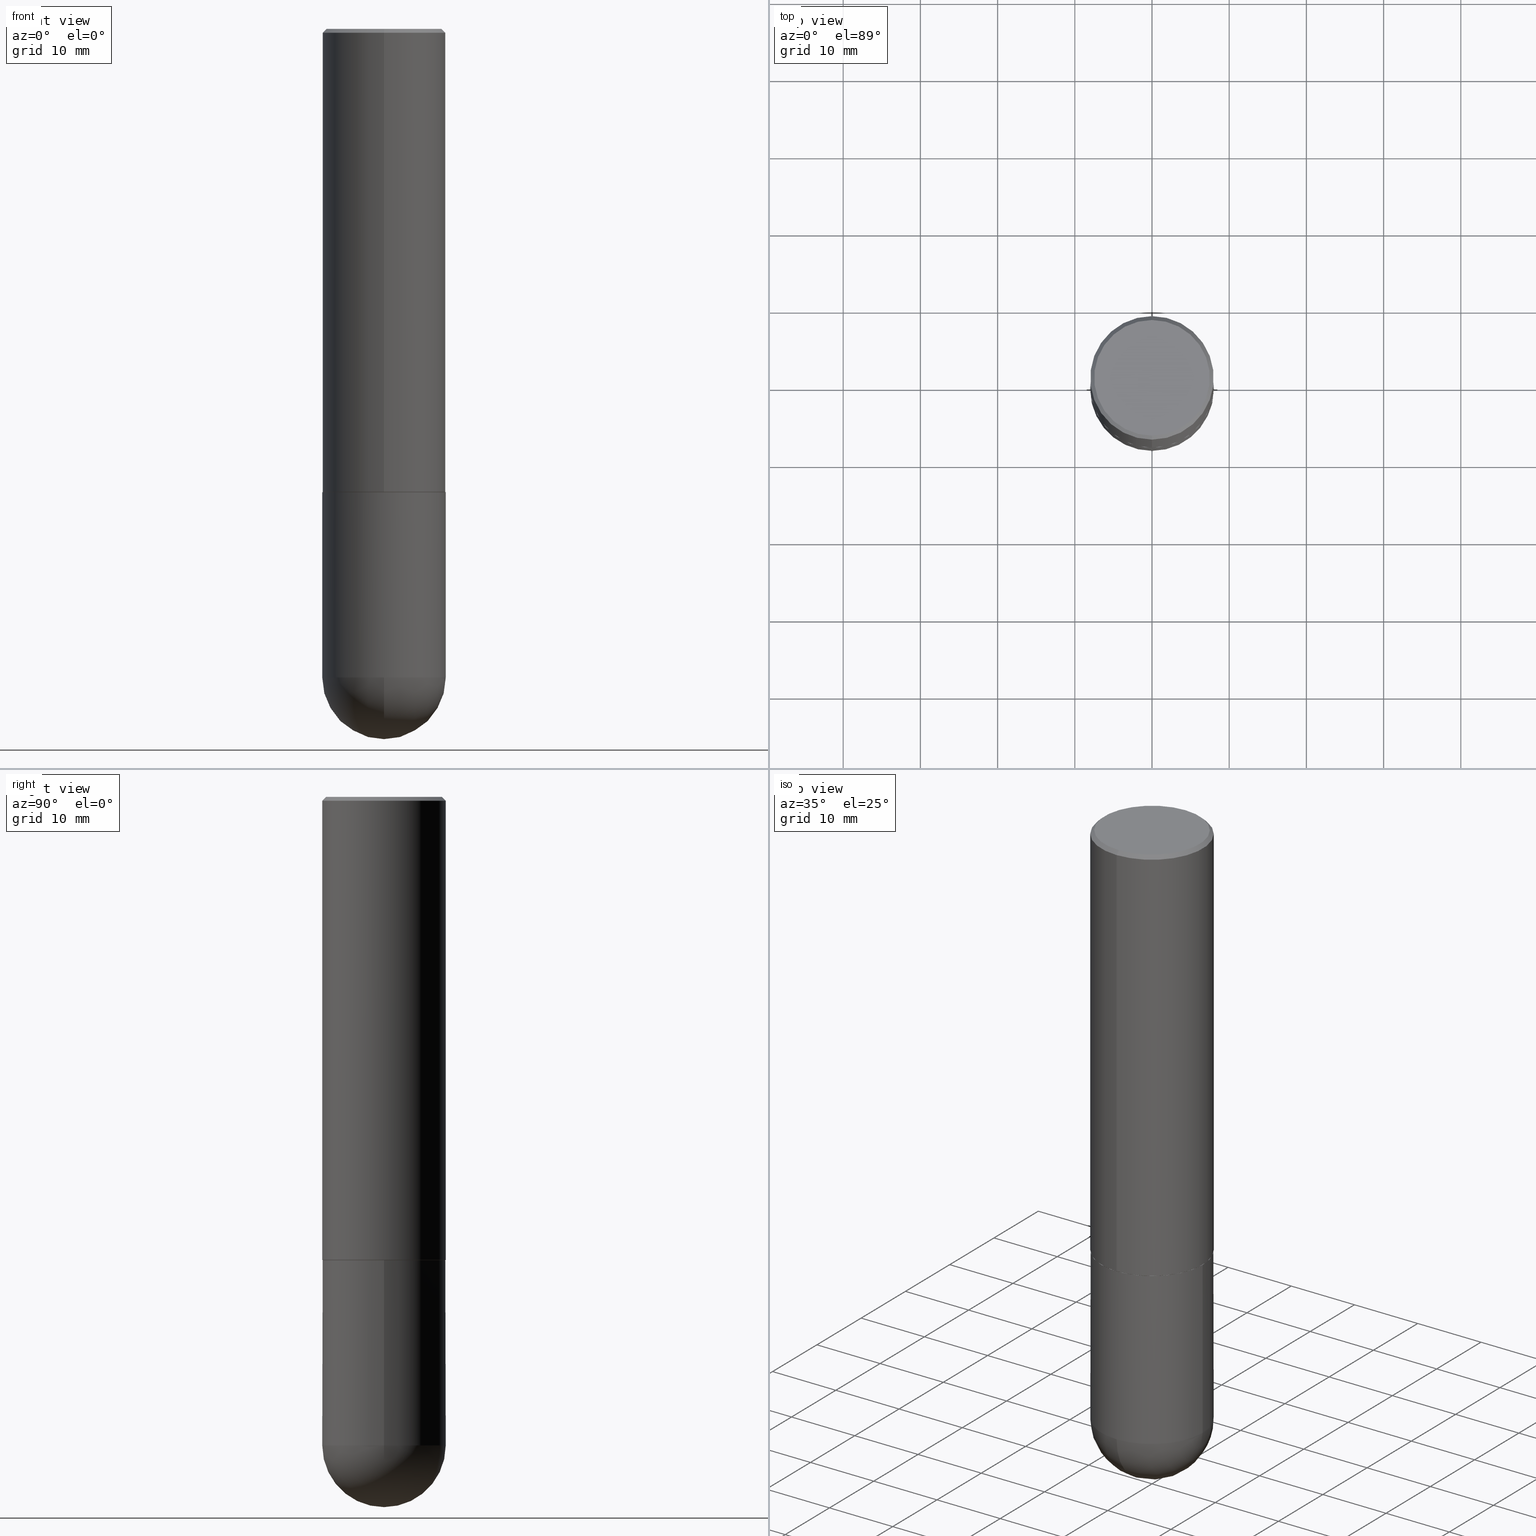
[diagram: canonical four-view strip — front | top / right | iso, engineering-drawing reading convention]
A machine part, canonical four-view strip (front | top / right | iso — engineering-drawing reading convention). The complete STEP part file that produces these views, byte-faithful:
ISO-10303-21;
HEADER;
FILE_DESCRIPTION (( 'STEP AP203' ),
    '1' );
FILE_NAME ('46519.STEP',
    '2024-04-10T11:50:35',
    ( '' ),
    ( '' ),
    'SwSTEP 2.0',
    'SolidWorks 2023',
    '' );
FILE_SCHEMA (( 'CONFIG_CONTROL_DESIGN' ));
ENDSEC;

DATA;
#1 = ORIENTED_EDGE ( 'NONE', *, *, #333, .T. ) ;
#2 = ORIENTED_EDGE ( 'NONE', *, *, #191, .F. ) ;
#3 = AXIS2_PLACEMENT_3D ( 'NONE', #58, #258, #122 ) ;
#4 = DIRECTION ( 'NONE',  ( 1.000000000000000000, -6.982962677686269866E-15, 0.000000000000000000 ) ) ;
#5 = EDGE_CURVE ( 'NONE', #285, #362, #358, .T. ) ;
#6 = VERTEX_POINT ( 'NONE', #83 ) ;
#7 = EDGE_CURVE ( 'NONE', #214, #158, #398, .T. ) ;
#8 = CARTESIAN_POINT ( 'NONE',  ( -2.199284095337290265E-15, -0.3149500000000001743, 1.099513928764781355E-15 ) ) ;
#9 = DIRECTION ( 'NONE',  ( 1.000000000000000000, -6.982962677686266711E-15, 4.876176775795936353E-29 ) ) ;
#10 = CIRCLE ( 'NONE', #226, 0.3149500000000000077 ) ;
#11 = EDGE_CURVE ( 'NONE', #362, #318, #378, .T. ) ;
#12 = APPROVAL_DATE_TIME ( #351, #123 ) ;
#13 = CC_DESIGN_DATE_AND_TIME_ASSIGNMENT ( #350, #19, ( #194 ) ) ;
#14 = VERTEX_POINT ( 'NONE', #22 ) ;
#15 = EDGE_LOOP ( 'NONE', ( #127, #368, #294, #228 ) ) ;
#16 = CALENDAR_DATE ( 2024, 10, 4 ) ;
#17 = AXIS2_PLACEMENT_3D ( 'NONE', #180, #18, #208 ) ;
#18 = DIRECTION ( 'NONE',  ( -1.000000000000000000, 7.105427357601001070E-15, -4.926315508542082329E-29 ) ) ;
#19 = DATE_TIME_ROLE ( 'creation_date' ) ;
#20 = PRODUCT_RELATED_PRODUCT_CATEGORY ( 'detail', '', ( #411 ) ) ;
#21 = DIRECTION ( 'NONE',  ( -2.445752866996063776E-29, 3.491074547594160525E-15, 1.000000000000000000 ) ) ;
#22 = CARTESIAN_POINT ( 'NONE',  ( -2.160713844398143363E-15, -0.3149500000000000632, -0.01999999999999896999 ) ) ;
#23 = CARTESIAN_POINT ( 'NONE',  ( 5.776686413970529753E-29, -8.247577218615278049E-15, -2.362199999999999633 ) ) ;
#24 = CONICAL_SURFACE ( 'NONE', #408, 0.3149500000000000077, 0.7853981633974471688 ) ;
#25 = DIRECTION ( 'NONE',  ( -6.982962677686266711E-15, -1.000000000000000000, 3.480615376543096919E-15 ) ) ;
#26 = AXIS2_PLACEMENT_3D ( 'NONE', #385, #144, #110 ) ;
#27 = EDGE_LOOP ( 'NONE', ( #128, #1, #393, #97, #156 ) ) ;
#28 = ORIENTED_EDGE ( 'NONE', *, *, #104, .F. ) ;
#29 = VERTEX_POINT ( 'NONE', #113 ) ;
#30 = ADVANCED_FACE ( 'NONE', ( #115 ), #253, .T. ) ;
#31 = ADVANCED_FACE ( 'NONE', ( #175 ), #305, .F. ) ;
#32 = CONICAL_SURFACE ( 'NONE', #273, 0.3149500000000000077, 0.7853981633974471688 ) ;
#33 = ORIENTED_EDGE ( 'NONE', *, *, #223, .T. ) ;
#34 = DIRECTION ( 'NONE',  ( 1.000000000000000000, -6.982962677686269866E-15, 0.000000000000000000 ) ) ;
#35 = ORIENTED_EDGE ( 'NONE', *, *, #206, .F. ) ;
#36 = CC_DESIGN_SECURITY_CLASSIFICATION ( #199, ( #169 ) ) ;
#37 = CARTESIAN_POINT ( 'NONE',  ( 2.129454468560427362E-15, 0.2949500000000001010, -1.127988208164095593E-15 ) ) ;
#38 = CONICAL_SURFACE ( 'NONE', #26, 0.3139500000000000068, 0.7853981633974141952 ) ;
#39 = LOCAL_TIME ( 7, 50, 35.00000000000000000, #327 ) ;
#40 = DIRECTION ( 'NONE',  ( -2.445752866996063776E-29, 3.491074547594160525E-15, 1.000000000000000000 ) ) ;
#41 = APPROVAL_STATUS ( 'not_yet_approved' ) ;
#42 = PERSON_AND_ORGANIZATION ( #75, #207 ) ;
#43 = CARTESIAN_POINT ( 'NONE',  ( 0.3149500000000000077, -2.199284095337289871E-15, 1.535751875536930130E-29 ) ) ;
#44 = CIRCLE ( 'NONE', #86, 0.3149500000000000077 ) ;
#45 = CARTESIAN_POINT ( 'NONE',  ( 0.3149500000000000077, -1.044686131395256792E-14, -2.362199999999999633 ) ) ;
#46 = CARTESIAN_POINT ( 'NONE',  ( -0.3149500000000000077, 2.237854346276435590E-15, -1.549218606675782676E-29 ) ) ;
#47 = CC_DESIGN_PERSON_AND_ORGANIZATION_ASSIGNMENT ( #300, #74, ( #194 ) ) ;
#48 = CARTESIAN_POINT ( 'NONE',  ( 4.891505733992145558E-31, -6.982149095188345750E-17, -0.02000000000000007327 ) ) ;
#49 = DIRECTION ( 'NONE',  ( -2.445468806185136877E-29, 3.491481338843145188E-15, 1.000000000000000000 ) ) ;
#50 = DIRECTION ( 'NONE',  ( -2.445752866996063776E-29, 3.491074547594160525E-15, 1.000000000000000000 ) ) ;
#51 = CYLINDRICAL_SURFACE ( 'NONE', #95, 0.3149500000000000077 ) ;
#52 = CIRCLE ( 'NONE', #298, 0.3149500000000000077 ) ;
#53 = CC_DESIGN_APPROVAL ( #123, ( #194 ) ) ;
#54 = PLANE ( 'NONE',  #249 ) ;
#55 = CARTESIAN_POINT ( 'NONE',  ( 8.539834969227531055E-29, -1.310104265196035002E-14, -3.621999999999999886 ) ) ;
#56 = VECTOR ( 'NONE', #397, 39.37007874015748143 ) ;
#57 = DIRECTION ( 'NONE',  ( -1.000000000000000000, 6.982962677686265133E-15, -4.883557194083112901E-29 ) ) ;
#58 = CARTESIAN_POINT ( 'NONE',  ( 5.777357422418102212E-29, -8.246616296326926125E-15, -2.362200000000000077 ) ) ;
#59 = EDGE_LOOP ( 'NONE', ( #166, #231, #372, #251 ) ) ;
#60 = AXIS2_PLACEMENT_3D ( 'NONE', #246, #354, #79 ) ;
#61 = LINE ( 'NONE', #164, #288 ) ;
#62 = SHAPE_DEFINITION_REPRESENTATION ( #338, #133 ) ;
#63 = ORIENTED_EDGE ( 'NONE', *, *, #277, .F. ) ;
#64 = APPROVAL_ROLE ( '' ) ;
#65 = CC_DESIGN_DATE_AND_TIME_ASSIGNMENT ( #386, #394, ( #199 ) ) ;
#66 = CARTESIAN_POINT ( 'NONE',  ( 8.087287615494557476E-29, -1.154650336162122627E-14, -3.307050000000000267 ) ) ;
#67 = FACE_OUTER_BOUND ( 'NONE', #348, .T. ) ;
#68 = ORIENTED_EDGE ( 'NONE', *, *, #81, .T. ) ;
#69 = VECTOR ( 'NONE', #196, 39.37007874015748143 ) ;
#70 = APPROVAL_ROLE ( '' ) ;
#71 = EDGE_CURVE ( 'NONE', #120, #167, #406, .T. ) ;
#72 = DIRECTION ( 'NONE',  ( -2.445752866996063776E-29, 3.491074547594160525E-15, 1.000000000000000000 ) ) ;
#73 = APPROVAL_DATE_TIME ( #112, #341 ) ;
#74 = PERSON_AND_ORGANIZATION_ROLE ( 'creator' ) ;
#75 = PERSON ( 'UNSPECIFIED', 'UNSPECIFIED', 'UNSPECIFIED', ('UNSPECIFIED'), ('UNSPECIFIED'), ('UNSPECIFIED') ) ;
#76 = DIRECTION ( 'NONE',  ( 1.000000000000000000, -6.982962677686269866E-15, 0.000000000000000000 ) ) ;
#77 = CLOSED_SHELL ( 'NONE', ( #98, #376, #274, #307, #132 ) ) ;
#78 = APPROVAL_STATUS ( 'not_yet_approved' ) ;
#79 = DIRECTION ( 'NONE',  ( -6.982962677686264344E-15, -1.000000000000000000, 3.491074547594160130E-15 ) ) ;
#80 = CIRCLE ( 'NONE', #3, 0.3139500000000000068 ) ;
#81 = EDGE_CURVE ( 'NONE', #167, #14, #330, .T. ) ;
#82 = DIRECTION ( 'NONE',  ( -6.982962677686265922E-15, -1.000000000000000000, 3.491074547594160130E-15 ) ) ;
#83 = CARTESIAN_POINT ( 'NONE',  ( 2.234301632597693067E-15, 0.3139499999999917357, -2.362200000000000966 ) ) ;
#84 = VECTOR ( 'NONE', #49, 39.37007874015748143 ) ;
#85 = CARTESIAN_POINT ( 'NONE',  ( 5.777357422418102212E-29, -8.246616296326926125E-15, -2.362200000000000077 ) ) ;
#86 = AXIS2_PLACEMENT_3D ( 'NONE', #352, #295, #100 ) ;
#87 = CARTESIAN_POINT ( 'NONE',  ( 8.087287615494557476E-29, -1.154650336162122627E-14, -3.307050000000000267 ) ) ;
#88 = CIRCLE ( 'NONE', #126, 0.3149500000000002853 ) ;
#89 = ORIENTED_EDGE ( 'NONE', *, *, #259, .F. ) ;
#90 = CARTESIAN_POINT ( 'NONE',  ( -2.199284095337233467E-15, -0.3149500000000085564, -2.361199999999998411 ) ) ;
#91 = ORIENTED_EDGE ( 'NONE', *, *, #396, .F. ) ;
#92 = SPHERICAL_SURFACE ( 'NONE', #324, 0.3149500000000001743 ) ;
#93 = ORIENTED_EDGE ( 'NONE', *, *, #277, .T. ) ;
#94 = CARTESIAN_POINT ( 'NONE',  ( 0.000000000000000000, 0.000000000000000000, 0.000000000000000000 ) ) ;
#95 = AXIS2_PLACEMENT_3D ( 'NONE', #182, #257, #116 ) ;
#96 = VECTOR ( 'NONE', #21, 39.37007874015748143 ) ;
#97 = ORIENTED_EDGE ( 'NONE', *, *, #191, .T. ) ;
#98 = ADVANCED_FACE ( 'NONE', ( #332 ), #51, .T. ) ;
#99 = DIMENSIONAL_EXPONENTS ( 1.000000000000000000, 0.000000000000000000, 0.000000000000000000, 0.000000000000000000, 0.000000000000000000, 0.000000000000000000, 0.000000000000000000 ) ;
#100 = DIRECTION ( 'NONE',  ( 1.000000000000000000, -6.982962677686266711E-15, 0.000000000000000000 ) ) ;
#101 = ORIENTED_EDGE ( 'NONE', *, *, #152, .F. ) ;
#102 = PERSON_AND_ORGANIZATION ( #75, #207 ) ;
#103 = CARTESIAN_POINT ( 'NONE',  ( 8.087287615494557476E-29, -1.154650336162122627E-14, -3.307050000000000267 ) ) ;
#104 = EDGE_CURVE ( 'NONE', #244, #6, #283, .T. ) ;
#105 = VECTOR ( 'NONE', #129, 39.37007874015748143 ) ;
#106 = APPLICATION_PROTOCOL_DEFINITION ( 'international standard', 'config_control_design', 1994, #135 ) ;
#107 = CARTESIAN_POINT ( 'NONE',  ( 2.199284095337369546E-15, 0.3149499999999882394, -3.307050000000001599 ) ) ;
#108 = PLANE ( 'NONE',  #334 ) ;
#109 = CALENDAR_DATE ( 2024, 10, 4 ) ;
#110 = DIRECTION ( 'NONE',  ( -6.982962677686266711E-15, -1.000000000000000000, 3.480615376543096919E-15 ) ) ;
#111 = EDGE_LOOP ( 'NONE', ( #33, #159, #286, #2, #93 ) ) ;
#112 = DATE_AND_TIME ( #16, #224 ) ;
#113 = CARTESIAN_POINT ( 'NONE',  ( 0.3149500000000000077, -1.209632438545554361E-14, -3.307050000000000267 ) ) ;
#114 = CIRCLE ( 'NONE', #266, 0.3149500000000000077 ) ;
#115 = FACE_OUTER_BOUND ( 'NONE', #312, .T. ) ;
#116 = DIRECTION ( 'NONE',  ( 1.000000000000000000, -6.982962677686266711E-15, 4.876176775795936353E-29 ) ) ;
#117 = ADVANCED_FACE ( 'NONE', ( #155 ), #317, .T. ) ;
#118 = DIRECTION ( 'NONE',  ( -6.982962677686265922E-15, -1.000000000000000000, 3.491074547594160525E-15 ) ) ;
#119 = CIRCLE ( 'NONE', #339, 0.2949500000000001010 ) ;
#120 = VERTEX_POINT ( 'NONE', #37 ) ;
#121 = DIRECTION ( 'NONE',  ( -2.445752866996063495E-29, 3.491074547594160525E-15, 1.000000000000000000 ) ) ;
#122 = DIRECTION ( 'NONE',  ( -6.982962677686266711E-15, -1.000000000000000000, 3.480615376543096919E-15 ) ) ;
#123 = APPROVAL ( #41, 'UNSPECIFIED' ) ;
#124 = EDGE_CURVE ( 'NONE', #136, #280, #88, .T. ) ;
#125 = ORIENTED_EDGE ( 'NONE', *, *, #7, .T. ) ;
#126 = AXIS2_PLACEMENT_3D ( 'NONE', #375, #72, #202 ) ;
#127 = ORIENTED_EDGE ( 'NONE', *, *, #7, .F. ) ;
#128 = ORIENTED_EDGE ( 'NONE', *, *, #5, .F. ) ;
#129 = DIRECTION ( 'NONE',  ( -2.445752866996063776E-29, 3.491074547594160525E-15, 1.000000000000000000 ) ) ;
#130 = ORIENTED_EDGE ( 'NONE', *, *, #335, .T. ) ;
#131 = ORIENTED_EDGE ( 'NONE', *, *, #11, .T. ) ;
#132 = ADVANCED_FACE ( 'NONE', ( #263 ), #267, .T. ) ;
#133 = ADVANCED_BREP_SHAPE_REPRESENTATION ( '46519', ( #405, #410, #382 ), #241 ) ;
#134 = LOCAL_TIME ( 7, 50, 35.00000000000000000, #322 ) ;
#135 = APPLICATION_CONTEXT ( 'configuration controlled 3d designs of mechanical parts and assemblies' ) ;
#136 = VERTEX_POINT ( 'NONE', #195 ) ;
#137 = PERSON_AND_ORGANIZATION_ROLE ( 'design_supplier' ) ;
#138 = EDGE_CURVE ( 'NONE', #280, #14, #315, .T. ) ;
#139 = PERSON_AND_ORGANIZATION ( #75, #207 ) ;
#140 = DIRECTION ( 'NONE',  ( -4.937700262164378437E-15, -0.7071067811865208164, 0.7071067811865739960 ) ) ;
#141 = DIRECTION ( 'NONE',  ( -6.982962677686264344E-15, -1.000000000000000000, 3.491074547594160130E-15 ) ) ;
#142 = AXIS2_PLACEMENT_3D ( 'NONE', #200, #40, #141 ) ;
#143 = PERSON_AND_ORGANIZATION_ROLE ( 'classification_officer' ) ;
#144 = DIRECTION ( 'NONE',  ( -2.445752866996063776E-29, 3.491074547594160525E-15, 1.000000000000000000 ) ) ;
#145 = COORDINATED_UNIVERSAL_TIME_OFFSET ( 5, 0, .BEHIND. ) ;
#146 = DIRECTION ( 'NONE',  ( 5.024295867787889629E-15, 0.7071067811865257013, 0.7071067811865691111 ) ) ;
#147 = DIRECTION ( 'NONE',  ( 2.438088387897960049E-29, -3.491481338843145188E-15, -1.000000000000000000 ) ) ;
#148 = DIRECTION ( 'NONE',  ( -6.982962677686265922E-15, -1.000000000000000000, 3.496670018878889100E-15 ) ) ;
#149 = DIRECTION ( 'NONE',  ( -2.445468806185136597E-29, 3.491481338843145583E-15, 1.000000000000000000 ) ) ;
#150 = CIRCLE ( 'NONE', #17, 0.3149500000000001743 ) ;
#151 = CARTESIAN_POINT ( 'NONE',  ( 5.774911669551105250E-29, -8.243125221779329781E-15, -2.361199999999999743 ) ) ;
#152 = EDGE_CURVE ( 'NONE', #233, #29, #260, .T. ) ;
#153 = LENGTH_MEASURE_WITH_UNIT ( LENGTH_MEASURE( 0.02539999999999999897 ), #222 );
#154 = EDGE_CURVE ( 'NONE', #244, #280, #61, .T. ) ;
#155 = FACE_OUTER_BOUND ( 'NONE', #373, .T. ) ;
#156 = ORIENTED_EDGE ( 'NONE', *, *, #11, .F. ) ;
#157 = CLOSED_SHELL ( 'NONE', ( #302, #349, #197, #265, #30, #117, #31, #363 ) ) ;
#158 = VERTEX_POINT ( 'NONE', #107 ) ;
#159 = ORIENTED_EDGE ( 'NONE', *, *, #5, .T. ) ;
#160 = ORIENTED_EDGE ( 'NONE', *, *, #124, .F. ) ;
#161 = FACE_OUTER_BOUND ( 'NONE', #367, .T. ) ;
#162 = CARTESIAN_POINT ( 'NONE',  ( 8.087287615494557476E-29, -1.154650336162122627E-14, -3.307050000000000267 ) ) ;
#163 = EDGE_LOOP ( 'NONE', ( #35, #68, #310, #177 ) ) ;
#164 = CARTESIAN_POINT ( 'NONE',  ( -2.192301132659545875E-15, -0.3139500000000082780, -2.362199999999998745 ) ) ;
#165 = CARTESIAN_POINT ( 'NONE',  ( 7.756167837580670108E-29, -1.202068572976127498E-14, -3.307049999999999823 ) ) ;
#166 = ORIENTED_EDGE ( 'NONE', *, *, #81, .F. ) ;
#167 = VERTEX_POINT ( 'NONE', #176 ) ;
#168 = AXIS2_PLACEMENT_3D ( 'NONE', #151, #281, #403 ) ;
#169 = PRODUCT_DEFINITION_FORMATION_WITH_SPECIFIED_SOURCE ( 'ANY', '', #411, .NOT_KNOWN. ) ;
#170 = DIRECTION ( 'NONE',  ( -2.445468806185136597E-29, 3.491481338843145583E-15, 1.000000000000000000 ) ) ;
#171 = ORIENTED_EDGE ( 'NONE', *, *, #335, .F. ) ;
#172 = EDGE_CURVE ( 'NONE', #190, #14, #114, .T. ) ;
#173 = APPROVAL_ROLE ( '' ) ;
#174 = LINE ( 'NONE', #301, #96 ) ;
#175 = FACE_OUTER_BOUND ( 'NONE', #346, .T. ) ;
#176 = CARTESIAN_POINT ( 'NONE',  ( -2.092108864420428426E-15, -0.2949500000000001010, 9.313966674617003266E-16 ) ) ;
#177 = ORIENTED_EDGE ( 'NONE', *, *, #287, .F. ) ;
#178 = EDGE_CURVE ( 'NONE', #214, #233, #150, .T. ) ;
#179 = APPROVAL_PERSON_ORGANIZATION ( #139, #123, #173 ) ;
#180 = CARTESIAN_POINT ( 'NONE',  ( 7.756167837580670108E-29, -1.202068572976127498E-14, -3.307049999999999823 ) ) ;
#181 = APPROVAL_PERSON_ORGANIZATION ( #353, #282, #64 ) ;
#182 = CARTESIAN_POINT ( 'NONE',  ( 0.000000000000000000, 0.000000000000000000, 0.000000000000000000 ) ) ;
#183 = DIRECTION ( 'NONE',  ( -2.445752866996063776E-29, 3.491074547594160525E-15, 1.000000000000000000 ) ) ;
#184 = EDGE_CURVE ( 'NONE', #6, #136, #399, .T. ) ;
#185 = DIRECTION ( 'NONE',  ( 1.000000000000000000, -6.982962677686269866E-15, 0.000000000000000000 ) ) ;
#186 = CIRCLE ( 'NONE', #309, 0.3149500000000000077 ) ;
#187 = ORIENTED_EDGE ( 'NONE', *, *, #154, .T. ) ;
#188 = ORIENTED_EDGE ( 'NONE', *, *, #172, .F. ) ;
#189 = DIRECTION ( 'NONE',  ( -1.000000000000000000, 6.982962677686265133E-15, -4.883557194083112901E-29 ) ) ;
#190 = VERTEX_POINT ( 'NONE', #252 ) ;
#191 = EDGE_CURVE ( 'NONE', #29, #318, #275, .T. ) ;
#192 = PERSON_AND_ORGANIZATION ( #75, #207 ) ;
#193 = DIRECTION ( 'NONE',  ( 1.000000000000000000, 0.000000000000000000, 0.000000000000000000 ) ) ;
#194 = PRODUCT_DEFINITION ( 'UNKNOWN', '', #169, #254 ) ;
#195 = CARTESIAN_POINT ( 'NONE',  ( 2.237854346276465567E-15, 0.3149499999999920141, -2.361200000000000632 ) ) ;
#196 = DIRECTION ( 'NONE',  ( 4.937700262164541731E-15, 0.7071067811865442421, -0.7071067811865507924 ) ) ;
#197 = ADVANCED_FACE ( 'NONE', ( #250 ), #32, .T. ) ;
#198 = AXIS2_PLACEMENT_3D ( 'NONE', #379, #291, #9 ) ;
#199 = SECURITY_CLASSIFICATION ( '', '', #201 ) ;
#200 = CARTESIAN_POINT ( 'NONE',  ( 0.000000000000000000, 0.000000000000000000, 0.000000000000000000 ) ) ;
#201 = SECURITY_CLASSIFICATION_LEVEL ( 'unclassified' ) ;
#202 = DIRECTION ( 'NONE',  ( -6.982962677686265922E-15, -1.000000000000000000, 3.469564049740290009E-15 ) ) ;
#203 = DIRECTION ( 'NONE',  ( -1.000000000000000000, 6.982962677686265922E-15, -4.876176775795935793E-29 ) ) ;
#204 = PERSON_AND_ORGANIZATION ( #75, #207 ) ;
#205 = DIRECTION ( 'NONE',  ( -2.445752866996063776E-29, 3.491074547594160525E-15, 1.000000000000000000 ) ) ;
#206 = EDGE_CURVE ( 'NONE', #167, #120, #119, .T. ) ;
#207 = ORGANIZATION ( 'UNSPECIFIED', 'UNSPECIFIED', '' ) ;
#208 = DIRECTION ( 'NONE',  ( -7.105427357600999492E-15, -1.000000000000000000, 0.000000000000000000 ) ) ;
#209 = LINE ( 'NONE', #238, #69 ) ;
#210 = AXIS2_PLACEMENT_3D ( 'NONE', #66, #170, #34 ) ;
#211 = PERSON_AND_ORGANIZATION_ROLE ( 'design_owner' ) ;
#212 = ORIENTED_EDGE ( 'NONE', *, *, #184, .T. ) ;
#213 = EDGE_CURVE ( 'NONE', #280, #136, #292, .T. ) ;
#214 = VERTEX_POINT ( 'NONE', #55 ) ;
#215 = DIRECTION ( 'NONE',  ( -4.851104656540957964E-15, -0.7071067811865491270, -0.7071067811865459074 ) ) ;
#216 = CARTESIAN_POINT ( 'NONE',  ( 4.891505733992145558E-31, -6.982149095188345750E-17, -0.02000000000000007327 ) ) ;
#217 = DIRECTION ( 'NONE',  ( -2.445752866996063776E-29, 3.491074547594160525E-15, 1.000000000000000000 ) ) ;
#218 =( NAMED_UNIT ( * ) SI_UNIT ( $, .STERADIAN. ) SOLID_ANGLE_UNIT ( ) );
#219 = DIRECTION ( 'NONE',  ( -2.445468806185136597E-29, 3.491481338843145583E-15, 1.000000000000000000 ) ) ;
#220 = CC_DESIGN_PERSON_AND_ORGANIZATION_ASSIGNMENT ( #42, #137, ( #169 ) ) ;
#221 = FACE_OUTER_BOUND ( 'NONE', #15, .T. ) ;
#222 =( LENGTH_UNIT ( ) NAMED_UNIT ( * ) SI_UNIT ( $, .METRE. ) );
#223 = EDGE_CURVE ( 'NONE', #158, #285, #52, .T. ) ;
#224 = LOCAL_TIME ( 7, 50, 35.00000000000000000, #271 ) ;
#225 = CARTESIAN_POINT ( 'NONE',  ( -2.237854346276355915E-15, -0.3149500000000118871, -3.307049999999999379 ) ) ;
#226 = AXIS2_PLACEMENT_3D ( 'NONE', #103, #240, #76 ) ;
#227 =( NAMED_UNIT ( * ) PLANE_ANGLE_UNIT ( ) SI_UNIT ( $, .RADIAN. ) );
#228 = ORIENTED_EDGE ( 'NONE', *, *, #223, .F. ) ;
#229 = ORIENTED_EDGE ( 'NONE', *, *, #138, .F. ) ;
#230 = DIRECTION ( 'NONE',  ( 6.982962677686265133E-15, 1.000000000000000000, -3.469564049740291586E-15 ) ) ;
#231 = ORIENTED_EDGE ( 'NONE', *, *, #71, .F. ) ;
#232 = CALENDAR_DATE ( 2024, 10, 4 ) ;
#233 = VERTEX_POINT ( 'NONE', #225 ) ;
#234 = DATE_AND_TIME ( #232, #390 ) ;
#235 = VECTOR ( 'NONE', #215, 39.37007874015748143 ) ;
#236 = DIRECTION ( 'NONE',  ( 0.000000000000000000, 0.000000000000000000, 1.000000000000000000 ) ) ;
#237 = EDGE_LOOP ( 'NONE', ( #290, #131 ) ) ;
#238 = CARTESIAN_POINT ( 'NONE',  ( 2.199284095337289871E-15, 0.3149499999999999522, -0.02000000000000117309 ) ) ;
#239 = MECHANICAL_CONTEXT ( 'NONE', #326, 'mechanical' ) ;
#240 = DIRECTION ( 'NONE',  ( -2.445468806185136597E-29, 3.491481338843145583E-15, 1.000000000000000000 ) ) ;
#241 =( GEOMETRIC_REPRESENTATION_CONTEXT ( 3 ) GLOBAL_UNCERTAINTY_ASSIGNED_CONTEXT ( ( #360 ) ) GLOBAL_UNIT_ASSIGNED_CONTEXT ( ( #369, #227, #218 ) ) REPRESENTATION_CONTEXT ( 'NONE', 'WORKASPACE' ) );
#242 = CYLINDRICAL_SURFACE ( 'NONE', #142, 0.3149500000000001743 ) ;
#243 = CARTESIAN_POINT ( 'NONE',  ( -0.3149500000000000077, -7.659185943841816172E-15, -2.362199999999999633 ) ) ;
#244 = VERTEX_POINT ( 'NONE', #255 ) ;
#245 = ORIENTED_EDGE ( 'NONE', *, *, #184, .F. ) ;
#246 = CARTESIAN_POINT ( 'NONE',  ( 0.000000000000000000, 0.000000000000000000, 0.000000000000000000 ) ) ;
#247 = AXIS2_PLACEMENT_3D ( 'NONE', #23, #149, #401 ) ;
#248 = ORIENTED_EDGE ( 'NONE', *, *, #213, .T. ) ;
#249 = AXIS2_PLACEMENT_3D ( 'NONE', #366, #284, #336 ) ;
#250 = FACE_OUTER_BOUND ( 'NONE', #163, .T. ) ;
#251 = ORIENTED_EDGE ( 'NONE', *, *, #172, .T. ) ;
#252 = CARTESIAN_POINT ( 'NONE',  ( 2.199284095337289871E-15, 0.3149499999999999522, -0.02000000000000117309 ) ) ;
#253 = CYLINDRICAL_SURFACE ( 'NONE', #60, 0.3149500000000001743 ) ;
#254 = DESIGN_CONTEXT ( 'detailed design', #135, 'design' ) ;
#255 = CARTESIAN_POINT ( 'NONE',  ( -2.192301132659545875E-15, -0.3139500000000082780, -2.362199999999998745 ) ) ;
#256 = VECTOR ( 'NONE', #146, 39.37007874015748854 ) ;
#257 = DIRECTION ( 'NONE',  ( -2.445468806185136597E-29, 3.491481338843145583E-15, 1.000000000000000000 ) ) ;
#258 = DIRECTION ( 'NONE',  ( -2.445752866996063776E-29, 3.491074547594160525E-15, 1.000000000000000000 ) ) ;
#259 = EDGE_CURVE ( 'NONE', #14, #190, #370, .T. ) ;
#260 = CIRCLE ( 'NONE', #210, 0.3149500000000000077 ) ;
#261 = EDGE_LOOP ( 'NONE', ( #337, #212, #329, #374 ) ) ;
#262 = CARTESIAN_POINT ( 'NONE',  ( -0.3149500000000000077, -7.659185943841817750E-15, -3.307050000000000267 ) ) ;
#263 = FACE_OUTER_BOUND ( 'NONE', #27, .T. ) ;
#264 = APPROVAL_DATE_TIME ( #234, #282 ) ;
#265 = ADVANCED_FACE ( 'NONE', ( #400 ), #24, .T. ) ;
#266 = AXIS2_PLACEMENT_3D ( 'NONE', #216, #205, #299 ) ;
#267 = CYLINDRICAL_SURFACE ( 'NONE', #198, 0.3149500000000000077 ) ;
#268 = EDGE_LOOP ( 'NONE', ( #342, #125, #63, #101 ) ) ;
#269 = PERSON_AND_ORGANIZATION ( #75, #207 ) ;
#270 = DIRECTION ( 'NONE',  ( -2.445752866996063776E-29, 3.491074547594160525E-15, 1.000000000000000000 ) ) ;
#271 = COORDINATED_UNIVERSAL_TIME_OFFSET ( 5, 0, .BEHIND. ) ;
#272 = CC_DESIGN_PERSON_AND_ORGANIZATION_ASSIGNMENT ( #192, #211, ( #411 ) ) ;
#273 = AXIS2_PLACEMENT_3D ( 'NONE', #364, #357, #361 ) ;
#274 = ADVANCED_FACE ( 'NONE', ( #371 ), #340, .T. ) ;
#275 = LINE ( 'NONE', #43, #56 ) ;
#276 = DIRECTION ( 'NONE',  ( 1.000000000000000000, -6.982962677686265922E-15, 4.883557194083112340E-29 ) ) ;
#277 = EDGE_CURVE ( 'NONE', #29, #158, #186, .T. ) ;
#278 = CC_DESIGN_APPROVAL ( #341, ( #169 ) ) ;
#279 = DIRECTION ( 'NONE',  ( 2.445752866996063776E-29, -3.491074547594160525E-15, -1.000000000000000000 ) ) ;
#280 = VERTEX_POINT ( 'NONE', #90 ) ;
#281 = DIRECTION ( 'NONE',  ( -2.445752866996063776E-29, 3.491074547594160525E-15, 1.000000000000000000 ) ) ;
#282 = APPROVAL ( #319, 'UNSPECIFIED' ) ;
#283 = CIRCLE ( 'NONE', #323, 0.3139500000000000068 ) ;
#284 = DIRECTION ( 'NONE',  ( 2.445752866996063495E-29, -3.491074547594160525E-15, -1.000000000000000000 ) ) ;
#285 = VERTEX_POINT ( 'NONE', #262 ) ;
#286 = ORIENTED_EDGE ( 'NONE', *, *, #314, .F. ) ;
#287 = EDGE_CURVE ( 'NONE', #120, #190, #209, .T. ) ;
#288 = VECTOR ( 'NONE', #140, 39.37007874015748854 ) ;
#289 = ORIENTED_EDGE ( 'NONE', *, *, #396, .T. ) ;
#290 = ORIENTED_EDGE ( 'NONE', *, *, #314, .T. ) ;
#291 = DIRECTION ( 'NONE',  ( -2.445468806185136597E-29, 3.491481338843145583E-15, 1.000000000000000000 ) ) ;
#292 = CIRCLE ( 'NONE', #168, 0.3149500000000002853 ) ;
#293 = LOCAL_TIME ( 7, 50, 35.00000000000000000, #145 ) ;
#294 = ORIENTED_EDGE ( 'NONE', *, *, #333, .F. ) ;
#295 = DIRECTION ( 'NONE',  ( -2.445468806185136597E-29, 3.491481338843145583E-15, 1.000000000000000000 ) ) ;
#296 = CALENDAR_DATE ( 2024, 10, 4 ) ;
#297 = AXIS2_PLACEMENT_3D ( 'NONE', #395, #276, #328 ) ;
#298 = AXIS2_PLACEMENT_3D ( 'NONE', #87, #219, #185 ) ;
#299 = DIRECTION ( 'NONE',  ( -6.982962677686265922E-15, -1.000000000000000000, 3.496670018878889100E-15 ) ) ;
#300 = PERSON_AND_ORGANIZATION ( #75, #207 ) ;
#301 = CARTESIAN_POINT ( 'NONE',  ( 2.237854346276435985E-15, 0.3149500000000001743, -1.099513928764781355E-15 ) ) ;
#302 = ADVANCED_FACE ( 'NONE', ( #316 ), #38, .T. ) ;
#303 = CARTESIAN_POINT ( 'NONE',  ( -2.160713844398143363E-15, -0.3149500000000000632, -0.01999999999999896999 ) ) ;
#304 = DIRECTION ( 'NONE',  ( -6.982962677686265922E-15, -1.000000000000000000, 3.491074547594160130E-15 ) ) ;
#305 = PLANE ( 'NONE',  #344 ) ;
#306 = CARTESIAN_POINT ( 'NONE',  ( 4.891505733992145558E-31, -6.982149095188345750E-17, -0.02000000000000007327 ) ) ;
#307 = ADVANCED_FACE ( 'NONE', ( #391 ), #108, .F. ) ;
#308 = AXIS2_PLACEMENT_3D ( 'NONE', #404, #402, #82 ) ;
#309 = AXIS2_PLACEMENT_3D ( 'NONE', #162, #343, #4 ) ;
#310 = ORIENTED_EDGE ( 'NONE', *, *, #259, .T. ) ;
#311 = ORIENTED_EDGE ( 'NONE', *, *, #206, .T. ) ;
#312 = EDGE_LOOP ( 'NONE', ( #171, #407, #313, #188 ) ) ;
#313 = ORIENTED_EDGE ( 'NONE', *, *, #138, .T. ) ;
#314 = EDGE_CURVE ( 'NONE', #318, #362, #44, .T. ) ;
#315 = LINE ( 'NONE', #8, #105 ) ;
#316 = FACE_OUTER_BOUND ( 'NONE', #261, .T. ) ;
#317 = CONICAL_SURFACE ( 'NONE', #389, 0.3139500000000000068, 0.7853981633974141952 ) ;
#318 = VERTEX_POINT ( 'NONE', #45 ) ;
#319 = APPROVAL_STATUS ( 'not_yet_approved' ) ;
#320 = PERSON_AND_ORGANIZATION_ROLE ( 'creator' ) ;
#321 = CARTESIAN_POINT ( 'NONE',  ( 2.230748918918891775E-15, 0.3139499999999917357, -2.362200000000000966 ) ) ;
#322 = COORDINATED_UNIVERSAL_TIME_OFFSET ( 5, 0, .BEHIND. ) ;
#323 = AXIS2_PLACEMENT_3D ( 'NONE', #85, #183, #25 ) ;
#324 = AXIS2_PLACEMENT_3D ( 'NONE', #412, #189, #230 ) ;
#325 = CARTESIAN_POINT ( 'NONE',  ( 2.199284095337347063E-15, 0.3149499999999917366, -2.362200000000000966 ) ) ;
#326 = APPLICATION_CONTEXT ( 'configuration controlled 3d designs of mechanical parts and assemblies' ) ;
#327 = COORDINATED_UNIVERSAL_TIME_OFFSET ( 5, 0, .BEHIND. ) ;
#328 = DIRECTION ( 'NONE',  ( 6.982962677686264344E-15, 1.000000000000000000, 0.000000000000000000 ) ) ;
#329 = ORIENTED_EDGE ( 'NONE', *, *, #213, .F. ) ;
#330 = LINE ( 'NONE', #303, #235 ) ;
#331 = CARTESIAN_POINT ( 'NONE',  ( 2.404071621500281892E-45, -3.431578620092266308E-31, -9.829577035119759600E-17 ) ) ;
#332 = FACE_OUTER_BOUND ( 'NONE', #111, .T. ) ;
#333 = EDGE_CURVE ( 'NONE', #285, #233, #10, .T. ) ;
#334 = AXIS2_PLACEMENT_3D ( 'NONE', #325, #147, #203 ) ;
#335 = EDGE_CURVE ( 'NONE', #136, #190, #174, .T. ) ;
#336 = DIRECTION ( 'NONE',  ( 6.982962677686265922E-15, 1.000000000000000000, -3.491074547594160525E-15 ) ) ;
#337 = ORIENTED_EDGE ( 'NONE', *, *, #104, .T. ) ;
#338 = PRODUCT_DEFINITION_SHAPE ( 'NONE', 'NONE',  #194 ) ;
#339 = AXIS2_PLACEMENT_3D ( 'NONE', #331, #50, #304 ) ;
#340 = SPHERICAL_SURFACE ( 'NONE', #355, 0.3149500000000001743 ) ;
#341 = APPROVAL ( #78, 'UNSPECIFIED' ) ;
#342 = ORIENTED_EDGE ( 'NONE', *, *, #178, .F. ) ;
#343 = DIRECTION ( 'NONE',  ( -2.445468806185136597E-29, 3.491481338843145583E-15, 1.000000000000000000 ) ) ;
#344 = AXIS2_PLACEMENT_3D ( 'NONE', #359, #121, #118 ) ;
#345 = AXIS2_PLACEMENT_3D ( 'NONE', #48, #217, #148 ) ;
#346 = EDGE_LOOP ( 'NONE', ( #28, #91 ) ) ;
#347 = CC_DESIGN_PERSON_AND_ORGANIZATION_ASSIGNMENT ( #204, #320, ( #169 ) ) ;
#348 = EDGE_LOOP ( 'NONE', ( #248, #130, #89, #229 ) ) ;
#349 = ADVANCED_FACE ( 'NONE', ( #67 ), #242, .T. ) ;
#350 = DATE_AND_TIME ( #296, #39 ) ;
#351 = DATE_AND_TIME ( #392, #134 ) ;
#352 = CARTESIAN_POINT ( 'NONE',  ( 5.776686413970529753E-29, -8.247577218615278049E-15, -2.362199999999999633 ) ) ;
#353 = PERSON_AND_ORGANIZATION ( #75, #207 ) ;
#354 = DIRECTION ( 'NONE',  ( -2.445752866996063776E-29, 3.491074547594160525E-15, 1.000000000000000000 ) ) ;
#355 = AXIS2_PLACEMENT_3D ( 'NONE', #165, #57, #380 ) ;
#356 = APPROVAL_PERSON_ORGANIZATION ( #269, #341, #70 ) ;
#357 = DIRECTION ( 'NONE',  ( 2.445752866996063776E-29, -3.491074547594160525E-15, -1.000000000000000000 ) ) ;
#358 = LINE ( 'NONE', #46, #84 ) ;
#359 = CARTESIAN_POINT ( 'NONE',  ( 5.777357422418101091E-29, -8.246616296326924547E-15, -2.362199999999999633 ) ) ;
#360 = UNCERTAINTY_MEASURE_WITH_UNIT (LENGTH_MEASURE( 1.000000000000000082E-05 ), #369, 'distance_accuracy_value', 'NONE');
#361 = DIRECTION ( 'NONE',  ( 6.982962677686265922E-15, 1.000000000000000000, -3.496670018878889100E-15 ) ) ;
#362 = VERTEX_POINT ( 'NONE', #243 ) ;
#363 = ADVANCED_FACE ( 'NONE', ( #161 ), #54, .F. ) ;
#364 = CARTESIAN_POINT ( 'NONE',  ( 4.891505733992145558E-31, -6.982149095188345750E-17, -0.02000000000000007327 ) ) ;
#365 = CARTESIAN_POINT ( 'NONE',  ( 5.777357422418102212E-29, -8.246616296326926125E-15, -2.362200000000000077 ) ) ;
#366 = CARTESIAN_POINT ( 'NONE',  ( 2.059624841783564852E-15, 0.2949500000000001010, -1.078840322988496727E-15 ) ) ;
#367 = EDGE_LOOP ( 'NONE', ( #381, #311 ) ) ;
#368 = ORIENTED_EDGE ( 'NONE', *, *, #178, .T. ) ;
#369 =( CONVERSION_BASED_UNIT ( 'INCH', #153 ) LENGTH_UNIT ( ) NAMED_UNIT ( #99 ) );
#370 = CIRCLE ( 'NONE', #345, 0.3149500000000000077 ) ;
#371 = FACE_OUTER_BOUND ( 'NONE', #268, .T. ) ;
#372 = ORIENTED_EDGE ( 'NONE', *, *, #287, .T. ) ;
#373 = EDGE_LOOP ( 'NONE', ( #245, #289, #187, #160 ) ) ;
#374 = ORIENTED_EDGE ( 'NONE', *, *, #154, .F. ) ;
#375 = CARTESIAN_POINT ( 'NONE',  ( 5.774911669551105250E-29, -8.243125221779329781E-15, -2.361199999999999743 ) ) ;
#376 = ADVANCED_FACE ( 'NONE', ( #221 ), #92, .T. ) ;
#377 = CC_DESIGN_PERSON_AND_ORGANIZATION_ASSIGNMENT ( #102, #143, ( #199 ) ) ;
#378 = CIRCLE ( 'NONE', #247, 0.3149500000000000077 ) ;
#379 = CARTESIAN_POINT ( 'NONE',  ( 0.000000000000000000, 0.000000000000000000, 0.000000000000000000 ) ) ;
#380 = DIRECTION ( 'NONE',  ( 6.982962677686265133E-15, 1.000000000000000000, -3.469564049740291586E-15 ) ) ;
#381 = ORIENTED_EDGE ( 'NONE', *, *, #71, .T. ) ;
#382 = AXIS2_PLACEMENT_3D ( 'NONE', #94, #236, #193 ) ;
#383 = COORDINATED_UNIVERSAL_TIME_OFFSET ( 5, 0, .BEHIND. ) ;
#384 = APPLICATION_PROTOCOL_DEFINITION ( 'international standard', 'config_control_design', 1994, #326 ) ;
#385 = CARTESIAN_POINT ( 'NONE',  ( 5.777357422418102212E-29, -8.246616296326926125E-15, -2.362200000000000077 ) ) ;
#386 = DATE_AND_TIME ( #109, #293 ) ;
#387 = DIRECTION ( 'NONE',  ( -6.982962677686266711E-15, -1.000000000000000000, 3.480615376543096919E-15 ) ) ;
#388 = CC_DESIGN_APPROVAL ( #282, ( #199 ) ) ;
#389 = AXIS2_PLACEMENT_3D ( 'NONE', #365, #270, #387 ) ;
#390 = LOCAL_TIME ( 7, 50, 35.00000000000000000, #383 ) ;
#391 = FACE_OUTER_BOUND ( 'NONE', #237, .T. ) ;
#392 = CALENDAR_DATE ( 2024, 10, 4 ) ;
#393 = ORIENTED_EDGE ( 'NONE', *, *, #152, .T. ) ;
#394 = DATE_TIME_ROLE ( 'classification_date' ) ;
#395 = CARTESIAN_POINT ( 'NONE',  ( 7.756167837580670108E-29, -1.202068572976127498E-14, -3.307049999999999823 ) ) ;
#396 = EDGE_CURVE ( 'NONE', #6, #244, #80, .T. ) ;
#397 = DIRECTION ( 'NONE',  ( -2.445468806185136877E-29, 3.491481338843145188E-15, 1.000000000000000000 ) ) ;
#398 = CIRCLE ( 'NONE', #297, 0.3149500000000001743 ) ;
#399 = LINE ( 'NONE', #321, #256 ) ;
#400 = FACE_OUTER_BOUND ( 'NONE', #59, .T. ) ;
#401 = DIRECTION ( 'NONE',  ( 1.000000000000000000, -6.982962677686266711E-15, 0.000000000000000000 ) ) ;
#402 = DIRECTION ( 'NONE',  ( -2.445752866996063776E-29, 3.491074547594160525E-15, 1.000000000000000000 ) ) ;
#403 = DIRECTION ( 'NONE',  ( -6.982962677686265922E-15, -1.000000000000000000, 3.469564049740290009E-15 ) ) ;
#404 = CARTESIAN_POINT ( 'NONE',  ( 2.404071621500281892E-45, -3.431578620092266308E-31, -9.829577035119759600E-17 ) ) ;
#405 = MANIFOLD_SOLID_BREP ( 'Body-Move/Copy2[1]', #77 ) ;
#406 = CIRCLE ( 'NONE', #308, 0.2949500000000001010 ) ;
#407 = ORIENTED_EDGE ( 'NONE', *, *, #124, .T. ) ;
#408 = AXIS2_PLACEMENT_3D ( 'NONE', #306, #279, #409 ) ;
#409 = DIRECTION ( 'NONE',  ( 6.982962677686265922E-15, 1.000000000000000000, -3.496670018878889100E-15 ) ) ;
#410 = MANIFOLD_SOLID_BREP ( 'Body-Move/Copy2[2]', #157 ) ;
#411 = PRODUCT ( '46519', '46519', '', ( #239 ) ) ;
#412 = CARTESIAN_POINT ( 'NONE',  ( 7.756167837580670108E-29, -1.202068572976127498E-14, -3.307049999999999823 ) ) ;
ENDSEC;
END-ISO-10303-21;
